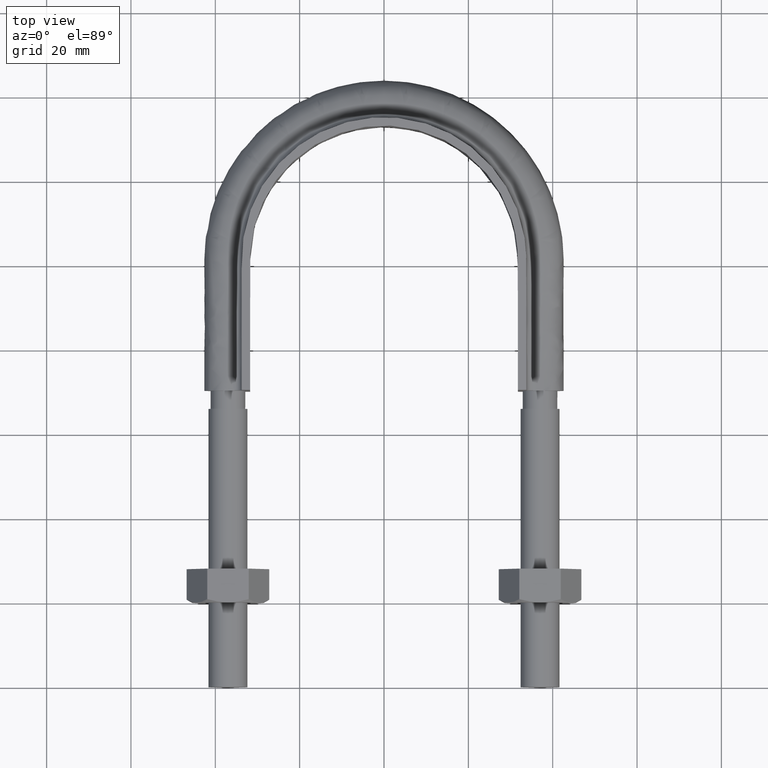
[diagram: clean part render]
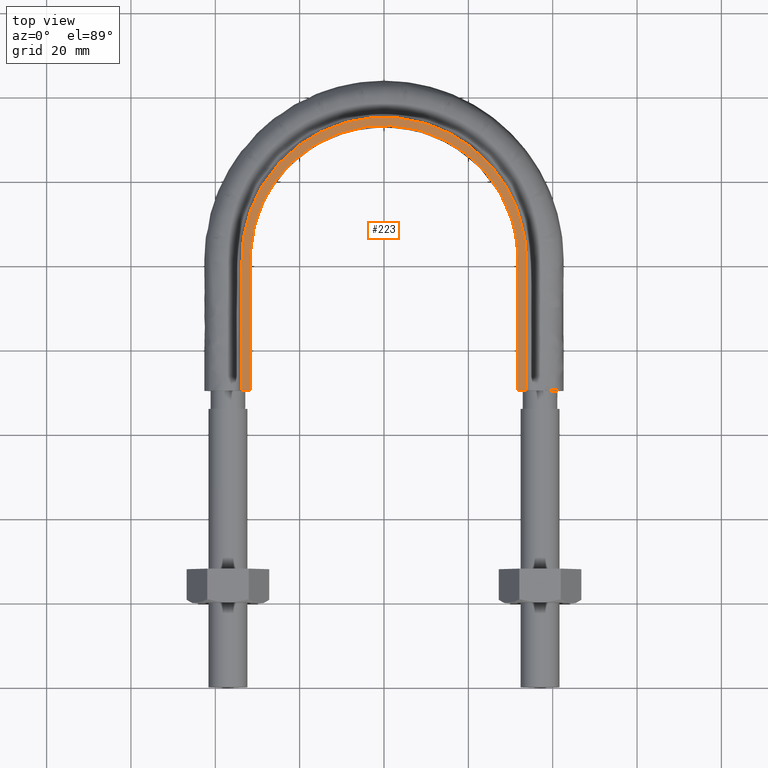
[diagram: same view with one face highlighted and labeled with its STEP entity id]
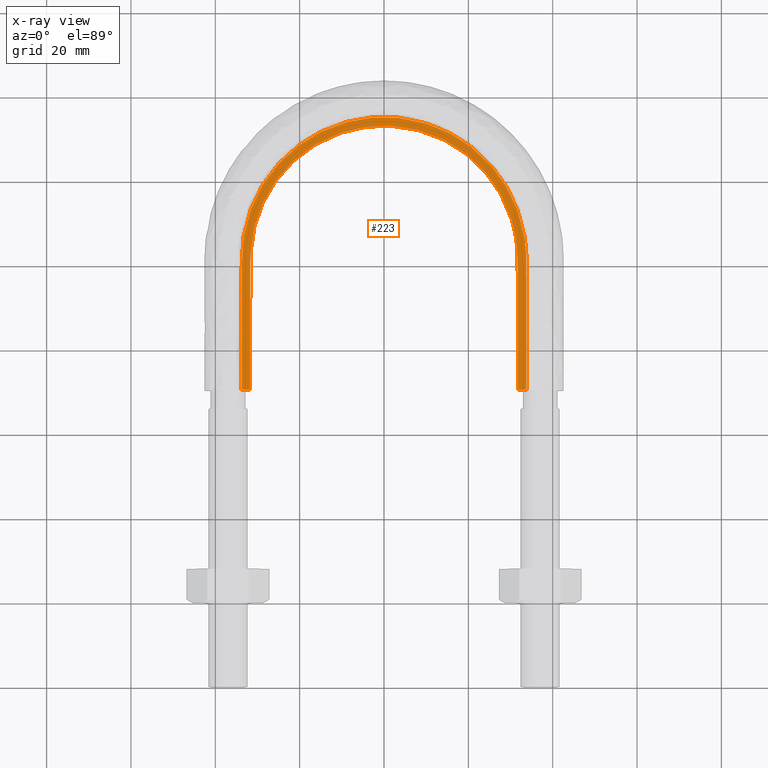
[diagram: x-ray of the same camera — body ghosted, the highlighted face saturated]
A machine part, top view. The second image highlights one B-rep face of the part: STEP entity #223.
The next image is the same camera in x-ray: the body ghosted, the highlighted face saturated — about 0% of this face is hidden behind the body in this view.
In plain terms, the highlighted planar face has unit normal (0, 0, 1).
Its self-contained STEP definition (entity closure, byte-faithful):
#223 = ADVANCED_FACE( '', ( #306 ), #307, .T. );
#306 = FACE_OUTER_BOUND( '', #1004, .T. );
#307 = PLANE( '', #1005 );
#1004 = EDGE_LOOP( '', ( #1492, #1493, #1494, #1495 ) );
#1005 = AXIS2_PLACEMENT_3D( '', #1496, #1497, #1498 );
#1492 = ORIENTED_EDGE( '', *, *, #2010, .T. );
#1493 = ORIENTED_EDGE( '', *, *, #2016, .T. );
#1494 = ORIENTED_EDGE( '', *, *, #2004, .T. );
#1495 = ORIENTED_EDGE( '', *, *, #2014, .F. );
#1496 = CARTESIAN_POINT( '', ( 45.0000000000000, 150.300000000000, 12.5000000000000 ) );
#1497 = DIRECTION( '', ( 0.000000000000000, 0.000000000000000, 1.00000000000000 ) );
#1498 = DIRECTION( '', ( 1.22460635382238E-016, 1.00000000000000, 0.000000000000000 ) );
#2004 = EDGE_CURVE( '', #2157, #2158, #2159, .T. );
#2010 = EDGE_CURVE( '', #2170, #2167, #2171, .T. );
#2014 = EDGE_CURVE( '', #2170, #2158, #2176, .T. );
#2016 = EDGE_CURVE( '', #2167, #2157, #2178, .T. );
#2157 = VERTEX_POINT( '', #2416 );
#2158 = VERTEX_POINT( '', #2417 );
#2159 = LINE( '', #2418, #2419 );
#2167 = VERTEX_POINT( '', #2468 );
#2170 = VERTEX_POINT( '', #2472 );
#2171 = LINE( '', #2473, #2474 );
#2176 = B_SPLINE_CURVE_WITH_KNOTS( '', 3, ( #2526, #2527, #2528, #2529, #2530, #2531, #2532, #2533, #2534, #2535, #2536, #2537, #2538, #2539, #2540, #2541, #2542 ), .UNSPECIFIED., .F., .F., ( 4, 3, 1, 1, 1, 1, 1, 1, 1, 3, 4 ), ( 0.0649546827794583, 1.00000000000000, 1.50000000000000, 2.00000000000000, 3.00000000000000, 4.00000000000000, 5.00000000000000, 6.00000000000000, 6.50000000000000, 7.00000000000000, 7.93504531722054 ), .UNSPECIFIED. );
#2178 = B_SPLINE_CURVE_WITH_KNOTS( '', 3, ( #2560, #2561, #2562, #2563, #2564, #2565, #2566, #2567, #2568, #2569, #2570, #2571, #2572, #2573, #2574, #2575, #2576, #2577, #2578, #2579, #2580, #2581, #2582, #2583, #2584, #2585, #2586, #2587, #2588, #2589, #2590, #2591, #2592, #2593, #2594, #2595, #2596, #2597, #2598, #2599, #2600, #2601, #2602, #2603, #2604, #2605, #2606, #2607, #2608, #2609, #2610, #2611, #2612, #2613, #2614, #2615, #2616, #2617, #2618, #2619, #2620, #2621, #2622, #2623, #2624, #2625, #2626, #2627, #2628, #2629, #2630, #2631, #2632, #2633 ), .UNSPECIFIED., .F., .F., ( 4, 1, 2, 2, 2, 2, 2, 2, 2, 2, 2, 2, 2, 2, 2, 2, 2, 2, 2, 2, 2, 2, 2, 2, 2, 2, 2, 2, 2, 2, 2, 2, 2, 2, 2, 2, 1, 4 ), ( 0.000000000000000, 0.0202102050147198, 0.0303153075220797, 0.0315784453354996, 0.0328415831489196, 0.0353678587757595, 0.0404204100294393, 0.0454729612831191, 0.0479992369099590, 0.0505255125367989, 0.0555780637904787, 0.0581043394173186, 0.0606306150441585, 0.0656831662978382, 0.0682094419246781, 0.0707357175515180, 0.0757882688051978, 0.0770514066186178, 0.0783145444320378, 0.0808408200588777, 0.0858933713125575, 0.0884196469393974, 0.0909459225662374, 0.0959984738199172, 0.0985247494467571, 0.101051025073597, 0.106103576327277, 0.108629851954117, 0.111156127580957, 0.116208678834637, 0.118734954461476, 0.121261230088316, 0.126313781341996, 0.128840056968836, 0.130103194782256, 0.131366332595676, 0.141471435103035, 0.161681640117755 ), .UNSPECIFIED. );
#2416 = CARTESIAN_POINT( '', ( 31.7500000000000, 70.3000000000001, 12.5000000000000 ) );
#2417 = CARTESIAN_POINT( '', ( 33.7500000000000, 70.3000000000001, 12.5000000000000 ) );
#2418 = CARTESIAN_POINT( '', ( -45.0000000000000, 70.3000000000001, 12.5000000000000 ) );
#2419 = VECTOR( '', #3074, 1000.00000000000 );
#2468 = CARTESIAN_POINT( '', ( -31.7500000000000, 70.3000000000001, 12.5000000000000 ) );
#2472 = CARTESIAN_POINT( '', ( -33.7500000000000, 70.3000000000001, 12.5000000000000 ) );
#2473 = CARTESIAN_POINT( '', ( -45.0000000000000, 70.3000000000001, 12.5000000000000 ) );
#2474 = VECTOR( '', #3078, 1000.00000000000 );
#2526 = CARTESIAN_POINT( '', ( -33.7500000000000, 70.3000000000001, 12.5000000000000 ) );
#2527 = CARTESIAN_POINT( '', ( -33.7500000000000, 80.6166666666667, 12.5000000000000 ) );
#2528 = CARTESIAN_POINT( '', ( -33.7500000000000, 90.9333333333334, 12.5000000000000 ) );
#2529 = CARTESIAN_POINT( '', ( -33.7500000000000, 101.250000000000, 12.5000000000000 ) );
#2530 = CARTESIAN_POINT( '', ( -33.7500000000000, 104.187187866659, 12.5000000000000 ) );
#2531 = CARTESIAN_POINT( '', ( -32.9599759745505, 110.084667958219, 12.5000000000000 ) );
#2532 = CARTESIAN_POINT( '', ( -28.4402068792077, 121.067380155194, 12.5000000000000 ) );
#2533 = CARTESIAN_POINT( '', ( -17.6636188802502, 131.845238812156, 12.5000000000000 ) );
#2534 = CARTESIAN_POINT( '', ( 3.40725875661414E-014, 136.577380593922, 12.5000000000000 ) );
#2535 = CARTESIAN_POINT( '', ( 17.6636188802502, 131.845238812156, 12.5000000000000 ) );
#2536 = CARTESIAN_POINT( '', ( 28.4402068792078, 121.067380155194, 12.5000000000000 ) );
#2537 = CARTESIAN_POINT( '', ( 32.9599759745505, 110.084667958219, 12.5000000000000 ) );
#2538 = CARTESIAN_POINT( '', ( 33.7500000000000, 104.187187866659, 12.5000000000000 ) );
#2539 = CARTESIAN_POINT( '', ( 33.7500000000000, 101.250000000000, 12.5000000000000 ) );
#2540 = CARTESIAN_POINT( '', ( 33.7500000000000, 90.9333333333333, 12.5000000000000 ) );
#2541 = CARTESIAN_POINT( '', ( 33.7500000000000, 80.6166666666667, 12.5000000000000 ) );
#2542 = CARTESIAN_POINT( '', ( 33.7500000000000, 70.3000000000001, 12.5000000000000 ) );
#2560 = CARTESIAN_POINT( '', ( -31.7500000000000, 70.3000000000001, 12.5000000000000 ) );
#2561 = CARTESIAN_POINT( '', ( -31.7500000000000, 77.0369293437400, 12.5000000000000 ) );
#2562 = CARTESIAN_POINT( '', ( -31.7500000000000, 87.1423233593499, 12.5000000000000 ) );
#2563 = CARTESIAN_POINT( '', ( -31.7500000000000, 97.2477173749597, 12.5000000000000 ) );
#2564 = CARTESIAN_POINT( '', ( -31.7500000000000, 101.037240130813, 12.5000000000000 ) );
#2565 = CARTESIAN_POINT( '', ( -31.7521642610726, 101.458314654079, 12.5000000000000 ) );
#2566 = CARTESIAN_POINT( '', ( -31.7349635021835, 102.300300168621, 12.5000000000000 ) );
#2567 = CARTESIAN_POINT( '', ( -31.7177711555355, 102.721227663076, 12.5000000000000 ) );
#2568 = CARTESIAN_POINT( '', ( -31.6406833640713, 103.983816372023, 12.5000000000000 ) );
#2569 = CARTESIAN_POINT( '', ( -31.5550232902433, 104.827433936328, 12.5000000000000 ) );
#2570 = CARTESIAN_POINT( '', ( -31.1980880763544, 107.342898742439, 12.5000000000000 ) );
#2571 = CARTESIAN_POINT( '', ( -30.8313275633497, 108.980474491936, 12.5000000000000 ) );
#2572 = CARTESIAN_POINT( '', ( -29.8499384171190, 112.179803643038, 12.5000000000000 ) );
#2573 = CARTESIAN_POINT( '', ( -29.2352287768351, 113.741532264753, 12.5000000000000 ) );
#2574 = CARTESIAN_POINT( '', ( -28.1157425086705, 116.023734272610, 12.5000000000000 ) );
#2575 = CARTESIAN_POINT( '', ( -27.7123205707261, 116.768021831126, 12.5000000000000 ) );
#2576 = CARTESIAN_POINT( '', ( -26.8521555868078, 118.211923772938, 12.5000000000000 ) );
#2577 = CARTESIAN_POINT( '', ( -26.3945912524833, 118.913601685329, 12.5000000000000 ) );
#2578 = CARTESIAN_POINT( '', ( -24.9420027889357, 120.959697403511, 12.5000000000000 ) );
#2579 = CARTESIAN_POINT( '', ( -23.8677478557203, 122.245667500296, 12.5000000000000 ) );
#2580 = CARTESIAN_POINT( '', ( -22.0955390107112, 124.055982712581, 12.5000000000000 ) );
#2581 = CARTESIAN_POINT( '', ( -21.4770182503660, 124.639758705435, 12.5000000000000 ) );
#2582 = CARTESIAN_POINT( '', ( -20.2074882028423, 125.746700479523, 12.5000000000000 ) );
#2583 = CARTESIAN_POINT( '', ( -19.5539268780710, 126.272637365224, 12.5000000000000 ) );
#2584 = CARTESIAN_POINT( '', ( -17.5373630401925, 127.768591691250, 12.5000000000000 ) );
#2585 = CARTESIAN_POINT( '', ( -16.1185968098038, 128.656922938864, 12.5000000000000 ) );
#2586 = CARTESIAN_POINT( '', ( -13.8742414518405, 129.819193950456, 12.5000000000000 ) );
#2587 = CARTESIAN_POINT( '', ( -13.1033698661120, 130.179720262199, 12.5000000000000 ) );
#2588 = CARTESIAN_POINT( '', ( -11.5461475993490, 130.833519181579, 12.5000000000000 ) );
#2589 = CARTESIAN_POINT( '', ( -10.7587533674359, 131.127710245229, 12.5000000000000 ) );
#2590 = CARTESIAN_POINT( '', ( -8.37103214347962, 131.915177558429, 12.5000000000000 ) );
#2591 = CARTESIAN_POINT( '', ( -6.74537802808663, 132.314135205256, 12.5000000000000 ) );
#2592 = CARTESIAN_POINT( '', ( -4.67041394773791, 132.653085266091, 12.5000000000000 ) );
#2593 = CARTESIAN_POINT( '', ( -4.25325934051794, 132.712824734268, 12.5000000000000 ) );
#2594 = CARTESIAN_POINT( '', ( -3.41454124584451, 132.815884931808, 12.5000000000000 ) );
#2595 = CARTESIAN_POINT( '', ( -2.99200723809561, 132.859272818654, 12.5000000000000 ) );
#2596 = CARTESIAN_POINT( '', ( -1.72635552123866, 132.963514462402, 12.5000000000000 ) );
#2597 = CARTESIAN_POINT( '', ( -0.885198156832370, 132.998704679312, 12.5000000000000 ) );
#2598 = CARTESIAN_POINT( '', ( 1.63052804050730, 133.002485531795, 12.5000000000000 ) );
#2599 = CARTESIAN_POINT( '', ( 3.29740714852783, 132.870024518896, 12.5000000000000 ) );
#2600 = CARTESIAN_POINT( '', ( 5.78275763505213, 132.474634310495, 12.5000000000000 ) );
#2601 = CARTESIAN_POINT( '', ( 6.60869771038812, 132.309852205478, 12.5000000000000 ) );
#2602 = CARTESIAN_POINT( '', ( 8.25543979056341, 131.912767960653, 12.5000000000000 ) );
#2603 = CARTESIAN_POINT( '', ( 9.06978327184294, 131.681836429455, 12.5000000000000 ) );
#2604 = CARTESIAN_POINT( '', ( 11.4665941867318, 130.899569917024, 12.5000000000000 ) );
#2605 = CARTESIAN_POINT( '', ( 13.0116435012361, 130.257504579382, 12.5000000000000 ) );
#2606 = CARTESIAN_POINT( '', ( 15.2488688310604, 129.111038002786, 12.5000000000000 ) );
#2607 = CARTESIAN_POINT( '', ( 15.9810871869032, 128.698019848223, 12.5000000000000 ) );
#2608 = CARTESIAN_POINT( '', ( 17.4176237616976, 127.808310923291, 12.5000000000000 ) );
#2609 = CARTESIAN_POINT( '', ( 18.1220003794339, 127.331330621377, 12.5000000000000 ) );
#2610 = CARTESIAN_POINT( '', ( 20.1561445082391, 125.832400395310, 12.5000000000000 ) );
#2611 = CARTESIAN_POINT( '', ( 21.4210334689788, 124.735194028140, 12.5000000000000 ) );
#2612 = CARTESIAN_POINT( '', ( 23.1855996936676, 122.946846204848, 12.5000000000000 ) );
#2613 = CARTESIAN_POINT( '', ( 23.7515184221973, 122.326821280248, 12.5000000000000 ) );
#2614 = CARTESIAN_POINT( '', ( 24.8377613405120, 121.037821344084, 12.5000000000000 ) );
#2615 = CARTESIAN_POINT( '', ( 25.3600679624071, 120.365806614812, 12.5000000000000 ) );
#2616 = CARTESIAN_POINT( '', ( 26.8325624869534, 118.305840862197, 12.5000000000000 ) );
#2617 = CARTESIAN_POINT( '', ( 27.6935953982135, 116.869317148901, 12.5000000000000 ) );
#2618 = CARTESIAN_POINT( '', ( 28.8070288284511, 114.621194344649, 12.5000000000000 ) );
#2619 = CARTESIAN_POINT( '', ( 29.1486450555321, 113.856346530460, 12.5000000000000 ) );
#2620 = CARTESIAN_POINT( '', ( 29.7727235152820, 112.295652719998, 12.5000000000000 ) );
#2621 = CARTESIAN_POINT( '', ( 30.0559168439982, 111.497410190507, 12.5000000000000 ) );
#2622 = CARTESIAN_POINT( '', ( 30.8095353334065, 109.071268261276, 12.5000000000000 ) );
#2623 = CARTESIAN_POINT( '', ( 31.1789547351960, 107.434164840829, 12.5000000000000 ) );
#2624 = CARTESIAN_POINT( '', ( 31.5404185934874, 104.950006097702, 12.5000000000000 ) );
#2625 = CARTESIAN_POINT( '', ( 31.6285547622308, 104.117166940136, 12.5000000000000 ) );
#2626 = CARTESIAN_POINT( '', ( 31.7108071430198, 102.860518138107, 12.5000000000000 ) );
#2627 = CARTESIAN_POINT( '', ( 31.7298830842712, 102.440401128766, 12.5000000000000 ) );
#2628 = CARTESIAN_POINT( '', ( 31.7509054532004, 101.597632906171, 12.5000000000000 ) );
#2629 = CARTESIAN_POINT( '', ( 31.7500000000001, 101.174559775058, 12.5000000000000 ) );
#2630 = CARTESIAN_POINT( '', ( 31.7500000000001, 97.3681072000510, 12.5000000000000 ) );
#2631 = CARTESIAN_POINT( '', ( 31.7500000000001, 87.2175670000318, 12.5000000000000 ) );
#2632 = CARTESIAN_POINT( '', ( 31.7500000000000, 77.0670268000128, 12.5000000000000 ) );
#2633 = CARTESIAN_POINT( '', ( 31.7500000000000, 70.3000000000001, 12.5000000000000 ) );
#3074 = DIRECTION( '', ( 1.00000000000000, -1.22460635382238E-016, 0.000000000000000 ) );
#3078 = DIRECTION( '', ( 1.00000000000000, -1.22460635382238E-016, 0.000000000000000 ) );